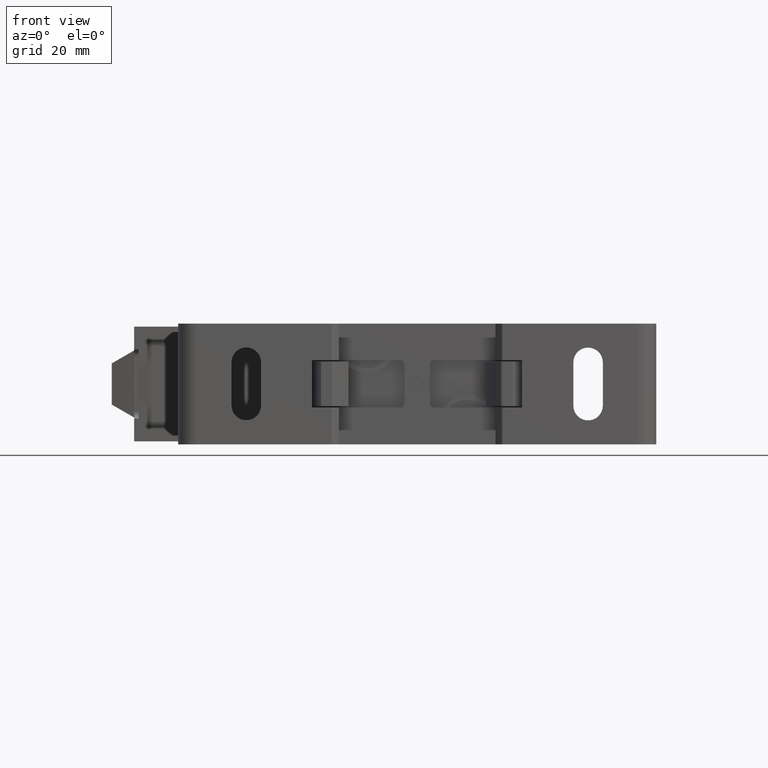
[diagram: clean part render]
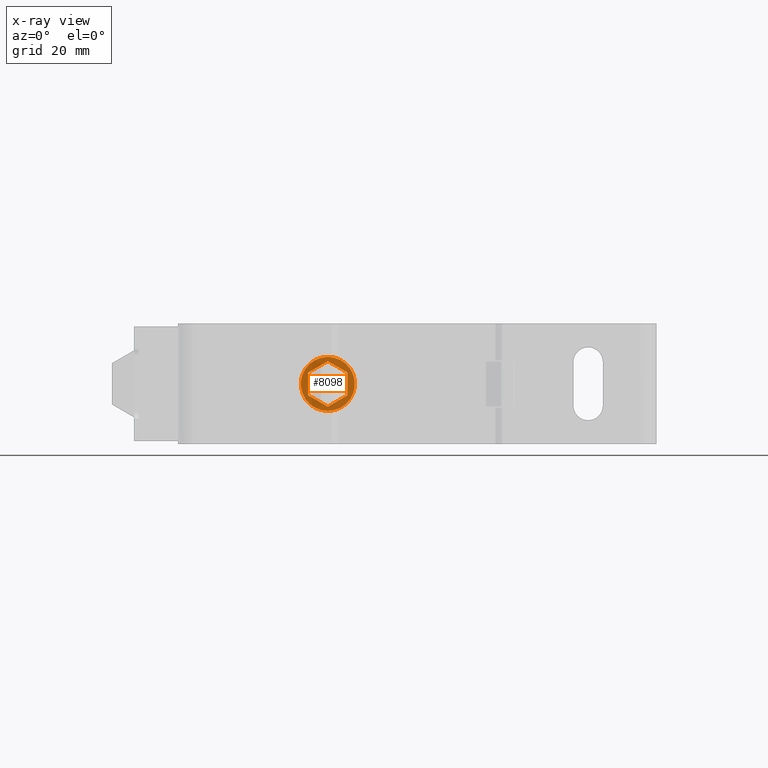
[diagram: x-ray — body ghosted, one internal face saturated and labeled with its STEP entity id]
A machine part, front view, then the same camera in x-ray: the body is ghosted and one INTERNAL B-rep face — a face not visible from any outside direction — is saturated and labeled: STEP entity #8098.
In plain terms, the highlighted planar face has unit normal (0, 1, 0).
Its self-contained STEP definition (entity closure, byte-faithful):
#422 = CARTESIAN_POINT ( 'NONE',  ( -24.40000000000000600, 11.99999999999999800, 16.04034118443425100 ) ) ;
#425 = CARTESIAN_POINT ( 'NONE',  ( -20.00000000000000000, 12.00000000000000700, 18.58068236886864400 ) ) ;
#451 = CARTESIAN_POINT ( 'NONE',  ( -15.60000000000000300, 12.00000000000000700, 16.04034118443429300 ) ) ;
#464 = CARTESIAN_POINT ( 'NONE',  ( -19.99999999999999600, 12.00000000000000000, 7.449999999999998400 ) ) ;
#477 = CARTESIAN_POINT ( 'NONE',  ( -20.00000000000000400, 12.00000000000000000, 8.419317631131216100 ) ) ;
#526 = CARTESIAN_POINT ( 'NONE',  ( -19.99999999999999600, 12.00000000000000000, 19.55000000000000100 ) ) ;
#535 = CARTESIAN_POINT ( 'NONE',  ( -24.40000000000000600, 12.00000000000000500, 10.95965881556556300 ) ) ;
#543 = CARTESIAN_POINT ( 'NONE',  ( -15.60000000000000300, 12.00000000000000400, 10.95965881556556300 ) ) ;
#737 = DIRECTION ( 'NONE',  ( 0.0000000000000000000, 1.000000000000000000, 0.0000000000000000000 ) ) ;
#746 = FACE_OUTER_BOUND ( 'NONE', #11243, .T. ) ;
#753 = PLANE ( 'NONE',  #3437 ) ;
#778 = FACE_BOUND ( 'NONE', #11286, .T. ) ;
#779 = CARTESIAN_POINT ( 'NONE',  ( -20.00000000000000000, 12.00000000000000000, 13.50000000000000000 ) ) ;
#784 = DIRECTION ( 'NONE',  ( 0.0000000000000000000, -0.0000000000000000000, 1.000000000000000000 ) ) ;
#3437 = AXIS2_PLACEMENT_3D ( 'NONE', #779, #737, #784 ) ;
#3558 = AXIS2_PLACEMENT_3D ( 'NONE', #13399, #13405, #13412 ) ;
#3591 = CIRCLE ( 'NONE', #3558, 6.050000000000001600 ) ;
#3593 = VECTOR ( 'NONE', #13446, 1000.000000000000000 ) ;
#3639 = VECTOR ( 'NONE', #13534, 1000.000000000000000 ) ;
#3749 = VECTOR ( 'NONE', #13978, 1000.000000000000000 ) ;
#3760 = VECTOR ( 'NONE', #13878, 1000.000000000000100 ) ;
#3825 = VECTOR ( 'NONE', #14020, 1000.000000000000100 ) ;
#3841 = VECTOR ( 'NONE', #14063, 1000.000000000000000 ) ;
#7585 = VERTEX_POINT ( 'NONE', #422 ) ;
#7589 = VERTEX_POINT ( 'NONE', #425 ) ;
#7611 = VERTEX_POINT ( 'NONE', #451 ) ;
#7612 = VERTEX_POINT ( 'NONE', #477 ) ;
#7618 = VERTEX_POINT ( 'NONE', #464 ) ;
#7646 = VERTEX_POINT ( 'NONE', #526 ) ;
#7657 = VERTEX_POINT ( 'NONE', #535 ) ;
#7661 = VERTEX_POINT ( 'NONE', #543 ) ;
#8098 = ADVANCED_FACE ( 'NONE', ( #746, #778 ), #753, .T. ) ;
#8602 = DIRECTION ( 'NONE',  ( -0.0000000000000000000, -1.000000000000000000, 0.0000000000000000000 ) ) ;
#8610 = CARTESIAN_POINT ( 'NONE',  ( -19.99999999999999600, 12.00000000000000000, 13.50000000000000000 ) ) ;
#8613 = DIRECTION ( 'NONE',  ( 0.0000000000000000000, 0.0000000000000000000, 1.000000000000000000 ) ) ;
#11243 = EDGE_LOOP ( 'NONE', ( #12764, #12716 ) ) ;
#11286 = EDGE_LOOP ( 'NONE', ( #12756, #12722, #12754, #12848, #12853, #12805 ) ) ;
#11768 = EDGE_CURVE ( 'NONE', #7646, #7618, #3591, .T. ) ;
#11784 = EDGE_CURVE ( 'NONE', #7661, #7611, #13419, .T. ) ;
#11814 = EDGE_CURVE ( 'NONE', #7612, #7661, #13515, .T. ) ;
#11926 = EDGE_CURVE ( 'NONE', #7611, #7589, #13899, .T. ) ;
#11951 = EDGE_CURVE ( 'NONE', #7657, #7612, #13956, .T. ) ;
#11971 = EDGE_CURVE ( 'NONE', #7589, #7585, #14035, .T. ) ;
#11980 = EDGE_CURVE ( 'NONE', #7585, #7657, #14021, .T. ) ;
#12716 = ORIENTED_EDGE ( 'NONE', *, *, #14899, .F. ) ;
#12722 = ORIENTED_EDGE ( 'NONE', *, *, #11784, .T. ) ;
#12754 = ORIENTED_EDGE ( 'NONE', *, *, #11926, .T. ) ;
#12756 = ORIENTED_EDGE ( 'NONE', *, *, #11814, .T. ) ;
#12764 = ORIENTED_EDGE ( 'NONE', *, *, #11768, .F. ) ;
#12805 = ORIENTED_EDGE ( 'NONE', *, *, #11951, .T. ) ;
#12848 = ORIENTED_EDGE ( 'NONE', *, *, #11971, .T. ) ;
#12853 = ORIENTED_EDGE ( 'NONE', *, *, #11980, .T. ) ;
#13399 = CARTESIAN_POINT ( 'NONE',  ( -19.99999999999999600, 12.00000000000000000, 13.50000000000000000 ) ) ;
#13405 = DIRECTION ( 'NONE',  ( -0.0000000000000000000, -1.000000000000000000, 0.0000000000000000000 ) ) ;
#13412 = DIRECTION ( 'NONE',  ( 0.0000000000000000000, 0.0000000000000000000, 1.000000000000000000 ) ) ;
#13419 = LINE ( 'NONE', #13478, #3593 ) ;
#13446 = DIRECTION ( 'NONE',  ( 0.0000000000000000000, -0.0000000000000000000, 1.000000000000000000 ) ) ;
#13478 = CARTESIAN_POINT ( 'NONE',  ( -15.60000000000000300, 12.00000000000000000, 13.50000000000000000 ) ) ;
#13515 = LINE ( 'NONE', #13537, #3639 ) ;
#13534 = DIRECTION ( 'NONE',  ( 0.8660254037844391500, 0.0000000000000000000, 0.4999999999999990600 ) ) ;
#13537 = CARTESIAN_POINT ( 'NONE',  ( -20.00000000000000400, 12.00000000000000000, 8.419317631131216100 ) ) ;
#13865 = CARTESIAN_POINT ( 'NONE',  ( -15.60000000000000300, 12.00000000000000000, 16.04034118443429300 ) ) ;
#13878 = DIRECTION ( 'NONE',  ( -0.8660254037844387100, 0.0000000000000000000, 0.4999999999999998900 ) ) ;
#13899 = LINE ( 'NONE', #13865, #3760 ) ;
#13956 = LINE ( 'NONE', #13986, #3749 ) ;
#13978 = DIRECTION ( 'NONE',  ( 0.8660254037844391500, 0.0000000000000000000, -0.4999999999999990600 ) ) ;
#13986 = CARTESIAN_POINT ( 'NONE',  ( -24.40000000000000600, 12.00000000000000000, 10.95965881556556300 ) ) ;
#13999 = CARTESIAN_POINT ( 'NONE',  ( -20.00000000000000000, 12.00000000000000000, 18.58068236886864400 ) ) ;
#14020 = DIRECTION ( 'NONE',  ( -0.8660254037844354900, 0.0000000000000000000, -0.5000000000000054400 ) ) ;
#14021 = LINE ( 'NONE', #14054, #3841 ) ;
#14035 = LINE ( 'NONE', #13999, #3825 ) ;
#14054 = CARTESIAN_POINT ( 'NONE',  ( -24.40000000000000600, 12.00000000000000000, 13.50000000000000000 ) ) ;
#14063 = DIRECTION ( 'NONE',  ( -0.0000000000000000000, 0.0000000000000000000, -1.000000000000000000 ) ) ;
#14491 = AXIS2_PLACEMENT_3D ( 'NONE', #8610, #8602, #8613 ) ;
#14534 = CIRCLE ( 'NONE', #14491, 6.050000000000001600 ) ;
#14899 = EDGE_CURVE ( 'NONE', #7618, #7646, #14534, .T. ) ;